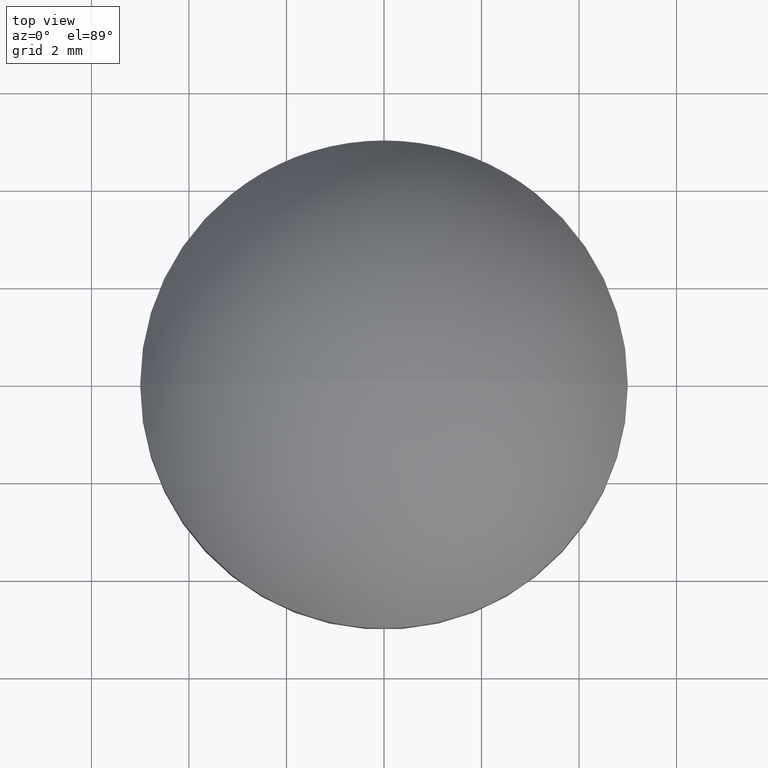
[diagram: clean part render]
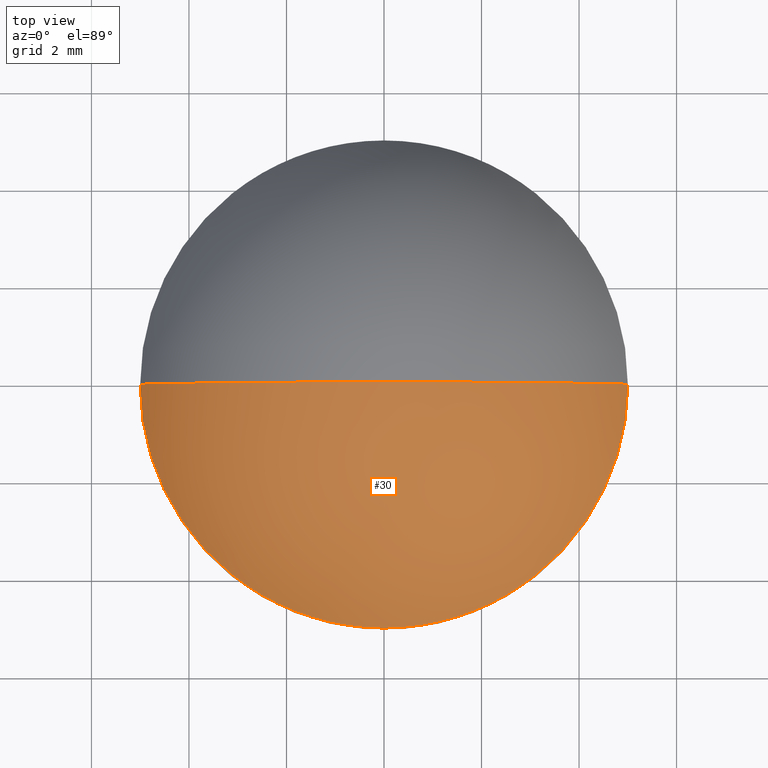
[diagram: same view with one face highlighted and labeled with its STEP entity id]
A machine part, top view. The second image highlights one B-rep face of the part: STEP entity #30.
In plain terms, the highlighted spherical surface has radius 5.8753 mm.
Its self-contained STEP definition (entity closure, byte-faithful):
#11 = AXIS2_PLACEMENT_3D ( 'NONE', #124, #62, #183 ) ;
#13 = ORIENTED_EDGE ( 'NONE', *, *, #166, .F. ) ;
#23 = CARTESIAN_POINT ( 'NONE',  ( -3.597575549097378931E-16, 0.000000000000000000, 5.000000000000000888 ) ) ;
#25 = DIRECTION ( 'NONE',  ( 1.000000000000000000, -1.224646799147353207E-16, 0.000000000000000000 ) ) ;
#30 = ADVANCED_FACE ( 'NONE', ( #204 ), #122, .T. ) ;
#34 = EDGE_LOOP ( 'NONE', ( #52, #135, #13 ) ) ;
#41 = CIRCLE ( 'NONE', #143, 5.875286738351255700 ) ;
#49 = DIRECTION ( 'NONE',  ( 1.000000000000000000, 0.000000000000000000, 0.000000000000000000 ) ) ;
#52 = ORIENTED_EDGE ( 'NONE', *, *, #105, .T. ) ;
#62 = DIRECTION ( 'NONE',  ( -0.000000000000000000, -1.000000000000000000, 0.000000000000000000 ) ) ;
#63 = DIRECTION ( 'NONE',  ( -1.224646799147353207E-16, -1.000000000000000000, -0.000000000000000000 ) ) ;
#66 = CIRCLE ( 'NONE', #194, 5.875286738351255700 ) ;
#79 = CARTESIAN_POINT ( 'NONE',  ( -5.000000000000000000, 0.000000000000000000, 2.209999999999999964 ) ) ;
#101 = CARTESIAN_POINT ( 'NONE',  ( 0.000000000000000000, 0.000000000000000000, -0.8752867383512550337 ) ) ;
#104 = VERTEX_POINT ( 'NONE', #79 ) ;
#105 = EDGE_CURVE ( 'NONE', #104, #148, #153, .T. ) ;
#107 = VERTEX_POINT ( 'NONE', #23 ) ;
#118 = CARTESIAN_POINT ( 'NONE',  ( 5.000000000000000000, 6.123233995736766282E-16, 2.209999999999999964 ) ) ;
#122 = SPHERICAL_SURFACE ( 'NONE', #11, 5.875286738351255700 ) ;
#124 = CARTESIAN_POINT ( 'NONE',  ( 0.000000000000000000, 0.000000000000000000, -0.8752867383512550337 ) ) ;
#125 = DIRECTION ( 'NONE',  ( 0.000000000000000000, 0.000000000000000000, 1.000000000000000000 ) ) ;
#129 = CARTESIAN_POINT ( 'NONE',  ( 0.000000000000000000, 0.000000000000000000, 2.209999999999999964 ) ) ;
#130 = EDGE_CURVE ( 'NONE', #148, #107, #41, .T. ) ;
#135 = ORIENTED_EDGE ( 'NONE', *, *, #130, .T. ) ;
#143 = AXIS2_PLACEMENT_3D ( 'NONE', #101, #63, #25 ) ;
#145 = AXIS2_PLACEMENT_3D ( 'NONE', #129, #193, #49 ) ;
#148 = VERTEX_POINT ( 'NONE', #118 ) ;
#153 = CIRCLE ( 'NONE', #145, 5.000000000000000000 ) ;
#156 = CARTESIAN_POINT ( 'NONE',  ( 0.000000000000000000, 0.000000000000000000, -0.8752867383512550337 ) ) ;
#166 = EDGE_CURVE ( 'NONE', #104, #107, #66, .T. ) ;
#183 = DIRECTION ( 'NONE',  ( -1.000000000000000000, 0.000000000000000000, 0.000000000000000000 ) ) ;
#193 = DIRECTION ( 'NONE',  ( 0.000000000000000000, 0.000000000000000000, 1.000000000000000000 ) ) ;
#194 = AXIS2_PLACEMENT_3D ( 'NONE', #156, #206, #125 ) ;
#204 = FACE_OUTER_BOUND ( 'NONE', #34, .T. ) ;
#206 = DIRECTION ( 'NONE',  ( 0.000000000000000000, 1.000000000000000000, 0.000000000000000000 ) ) ;